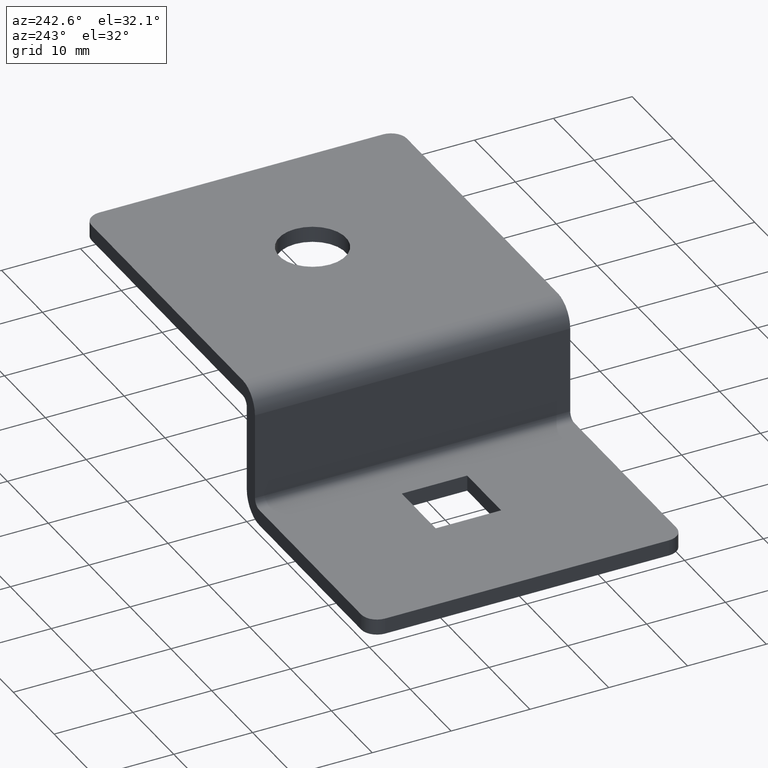
[diagram: clean part render]
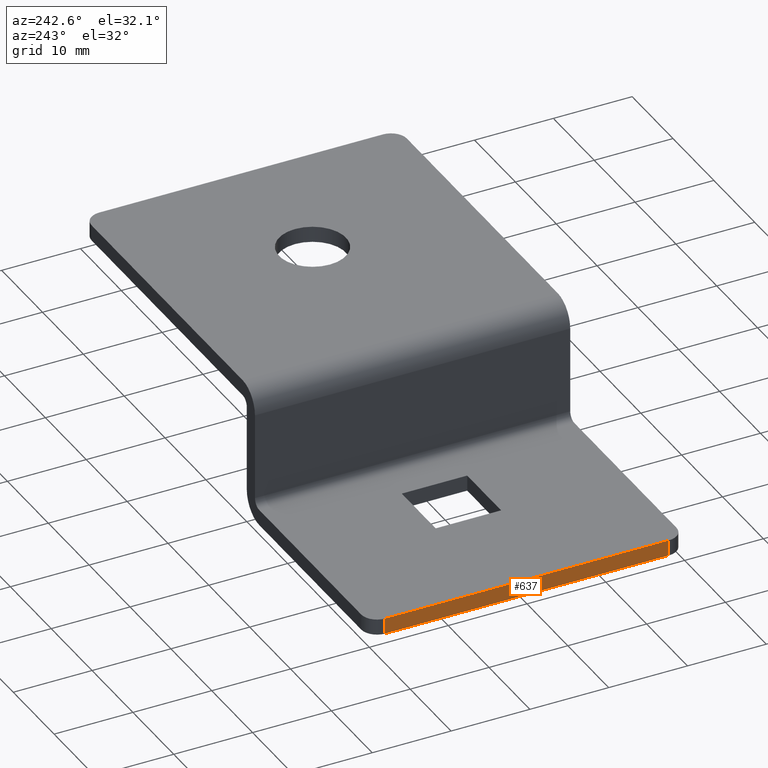
[diagram: same view with one face highlighted and labeled with its STEP entity id]
A machine part, auxiliary view. The second image highlights one B-rep face of the part: STEP entity #637.
In plain terms, the highlighted planar face has unit normal (-1, 0, 0).
Its self-contained STEP definition (entity closure, byte-faithful):
#236=CARTESIAN_POINT('',(-69.999999999720060,-17.999999999919964,-16.999999999939888));
#237=VERTEX_POINT('',#236);
#245=CARTESIAN_POINT('',(-69.999999999720060,17.999999999919964,-16.999999999939888));
#246=VERTEX_POINT('',#245);
#247=CARTESIAN_POINT('',(-69.999999999720060,17.999999999919964,-16.999999999939888));
#248=DIRECTION('',(0.0,-1.0,0.0));
#249=VECTOR('',#248,35.999999999839929);
#250=LINE('',#247,#249);
#251=EDGE_CURVE('',#246,#237,#250,.T.);
#302=CARTESIAN_POINT('',(-69.999999999720060,17.999999999919964,-14.999999999939890));
#303=VERTEX_POINT('',#302);
#320=CARTESIAN_POINT('',(-69.999999999720060,17.999999999919964,-14.999999999939890));
#321=DIRECTION('',(0.0,0.0,-1.0));
#322=VECTOR('',#321,1.999999999999998);
#323=LINE('',#320,#322);
#324=EDGE_CURVE('',#303,#246,#323,.T.);
#341=CARTESIAN_POINT('',(-69.999999999720060,-17.999999999919964,-14.999999999939886));
#342=VERTEX_POINT('',#341);
#343=CARTESIAN_POINT('',(-69.999999999720060,17.999999999919964,-14.999999999939890));
#344=DIRECTION('',(0.0,-1.0,0.0));
#345=VECTOR('',#344,35.999999999839929);
#346=LINE('',#343,#345);
#347=EDGE_CURVE('',#303,#342,#346,.T.);
#589=CARTESIAN_POINT('',(-69.999999999720060,-17.999999999919964,-14.999999999939886));
#590=DIRECTION('',(0.0,0.0,-1.0));
#591=VECTOR('',#590,2.000000000000002);
#592=LINE('',#589,#591);
#593=EDGE_CURVE('',#342,#237,#592,.T.);
#626=CARTESIAN_POINT('',(-69.999999999720060,19.999999999919964,-14.999999999939890));
#627=DIRECTION('',(-1.0,0.0,0.0));
#628=DIRECTION('',(0.0,0.0,-1.0));
#629=AXIS2_PLACEMENT_3D('',#626,#627,#628);
#630=PLANE('',#629);
#631=ORIENTED_EDGE('',*,*,#347,.F.);
#632=ORIENTED_EDGE('',*,*,#324,.T.);
#633=ORIENTED_EDGE('',*,*,#251,.T.);
#634=ORIENTED_EDGE('',*,*,#593,.F.);
#635=EDGE_LOOP('',(#631,#632,#633,#634));
#636=FACE_OUTER_BOUND('',#635,.T.);
#637=ADVANCED_FACE('',(#636),#630,.T.);